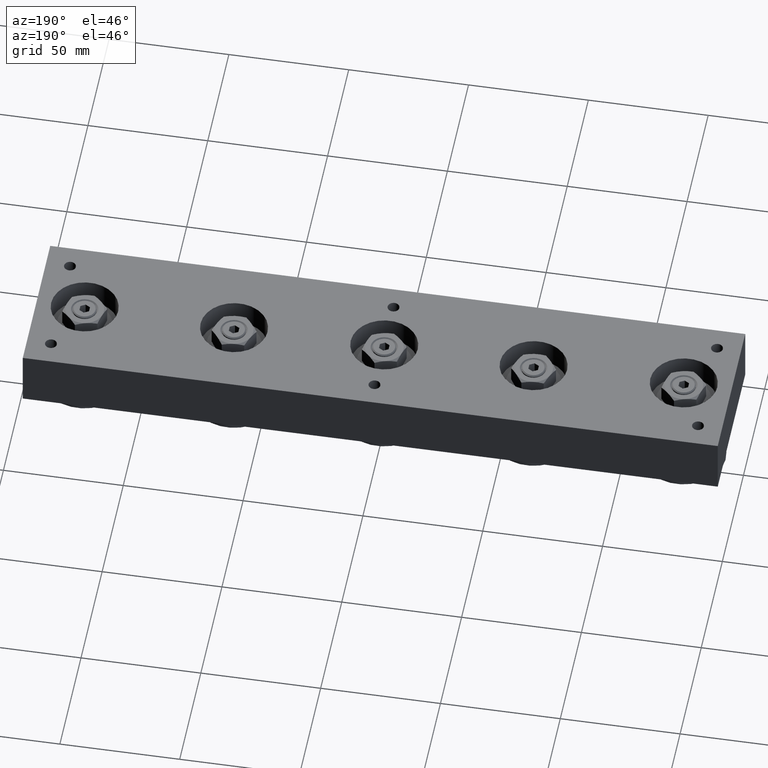
[diagram: clean part render]
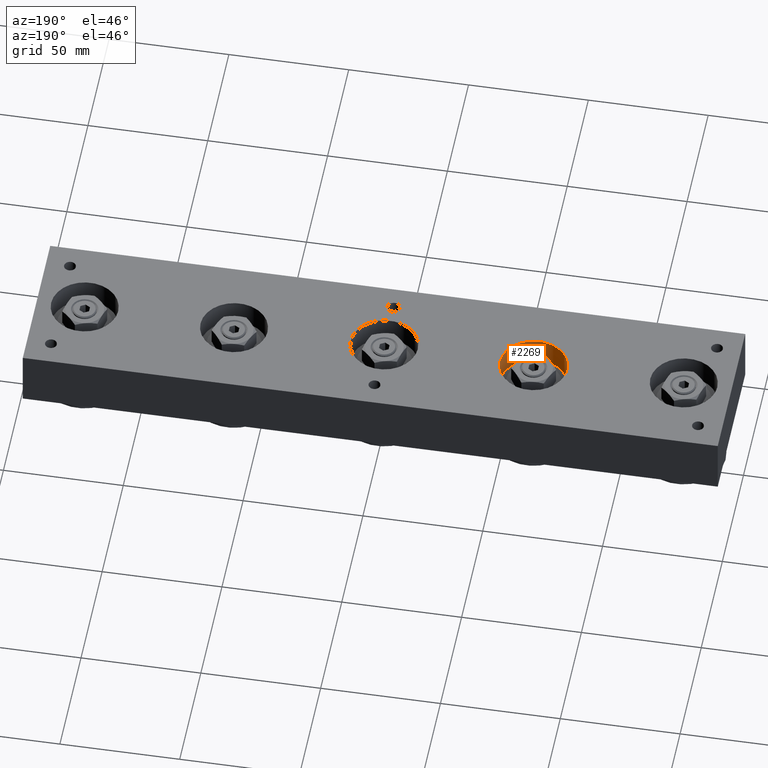
[diagram: same view with one face highlighted and labeled with its STEP entity id]
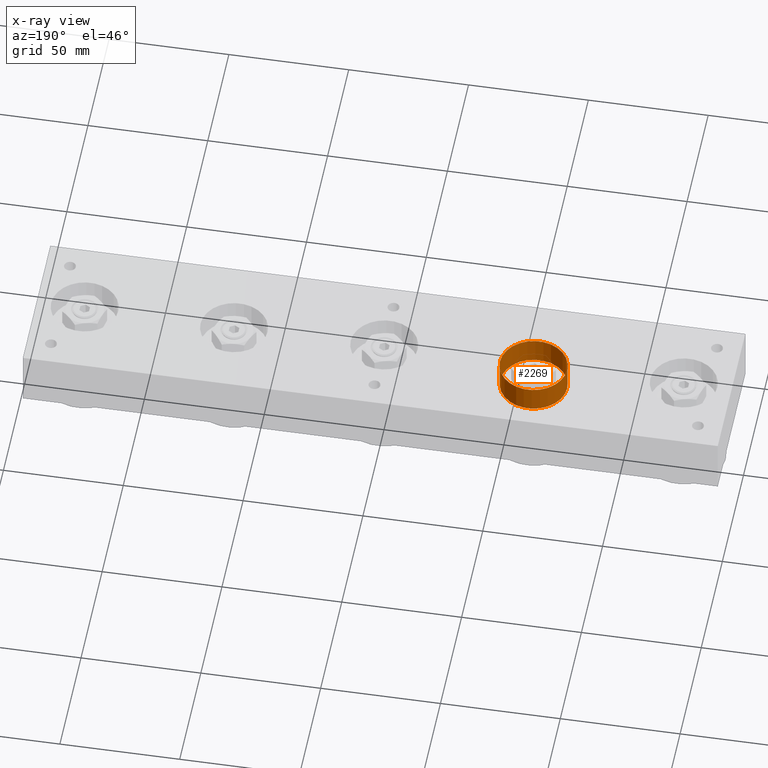
[diagram: x-ray of the same camera — body ghosted, the highlighted face saturated]
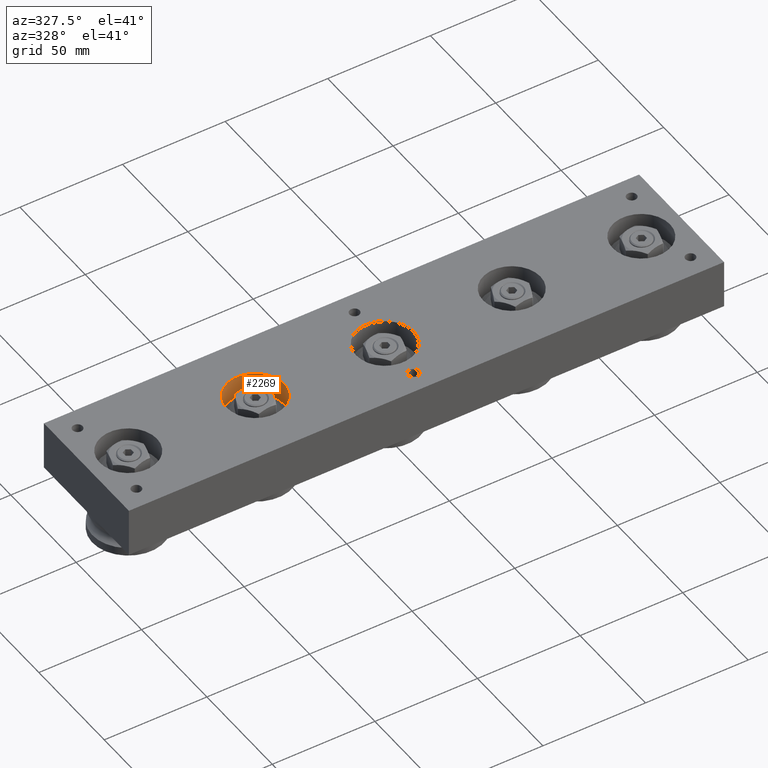
[diagram: same view with one face highlighted and labeled with its STEP entity id]
A machine part, auxiliary view. The second image highlights one B-rep face of the part: STEP entity #2269.
The next image is the same camera in x-ray: the body ghosted, the highlighted face saturated — about 0% of this face is hidden behind the body in this view.
A second angle (auxiliary view) of the same face is appended — the face is thin or edge-on in the first view.
In plain terms, the highlighted cylindrical surface (bore or boss wall) has radius 14 mm, axis along (0, 0, 1).
Its self-contained STEP definition (entity closure, byte-faithful):
#316=FACE_OUTER_BOUND('',#467,.T.);
#467=EDGE_LOOP('',(#1642,#1643,#1644,#1645));
#654=LINE('',#3785,#796);
#796=VECTOR('',#3035,14.);
#952=CIRCLE('',#2649,14.);
#954=CIRCLE('',#2652,14.);
#1095=VERTEX_POINT('',#3778);
#1097=VERTEX_POINT('',#3783);
#1309=EDGE_CURVE('',#1095,#1095,#952,.T.);
#1311=EDGE_CURVE('',#1097,#1097,#954,.T.);
#1312=EDGE_CURVE('',#1097,#1095,#654,.T.);
#1642=ORIENTED_EDGE('',*,*,#1311,.F.);
#1643=ORIENTED_EDGE('',*,*,#1312,.T.);
#1644=ORIENTED_EDGE('',*,*,#1309,.F.);
#1645=ORIENTED_EDGE('',*,*,#1312,.F.);
#2208=CYLINDRICAL_SURFACE('',#2651,14.);
#2269=ADVANCED_FACE('',(#316),#2208,.F.);
#2649=AXIS2_PLACEMENT_3D('',#3779,#3027,#3028);
#2651=AXIS2_PLACEMENT_3D('',#3782,#3031,#3032);
#2652=AXIS2_PLACEMENT_3D('',#3784,#3033,#3034);
#3027=DIRECTION('center_axis',(0.,0.,1.));
#3028=DIRECTION('ref_axis',(1.,0.,0.));
#3031=DIRECTION('center_axis',(0.,0.,1.));
#3032=DIRECTION('ref_axis',(1.,0.,0.));
#3033=DIRECTION('center_axis',(0.,0.,-1.));
#3034=DIRECTION('ref_axis',(1.,0.,0.));
#3035=DIRECTION('',(0.,0.,-1.));
#3778=CARTESIAN_POINT('',(-76.5,0.399999999999994,13.));
#3779=CARTESIAN_POINT('Origin',(-62.5,0.399999999999996,13.));
#3782=CARTESIAN_POINT('Origin',(-62.5,0.399999999999996,18.5));
#3783=CARTESIAN_POINT('',(-76.5,0.399999999999994,24.));
#3784=CARTESIAN_POINT('Origin',(-62.5,0.399999999999996,24.));
#3785=CARTESIAN_POINT('',(-76.5,0.399999999999994,18.5));